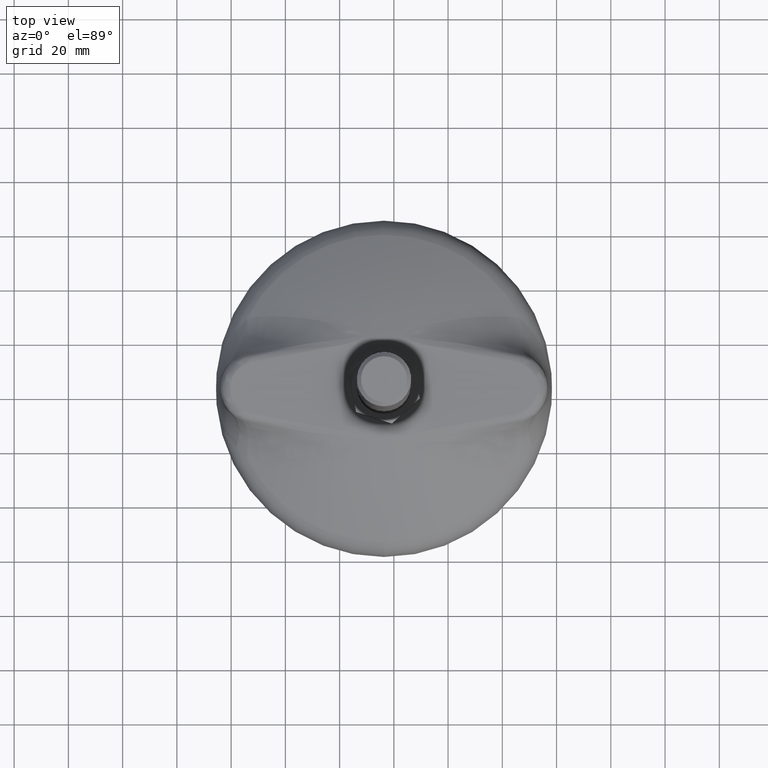
[diagram: clean part render]
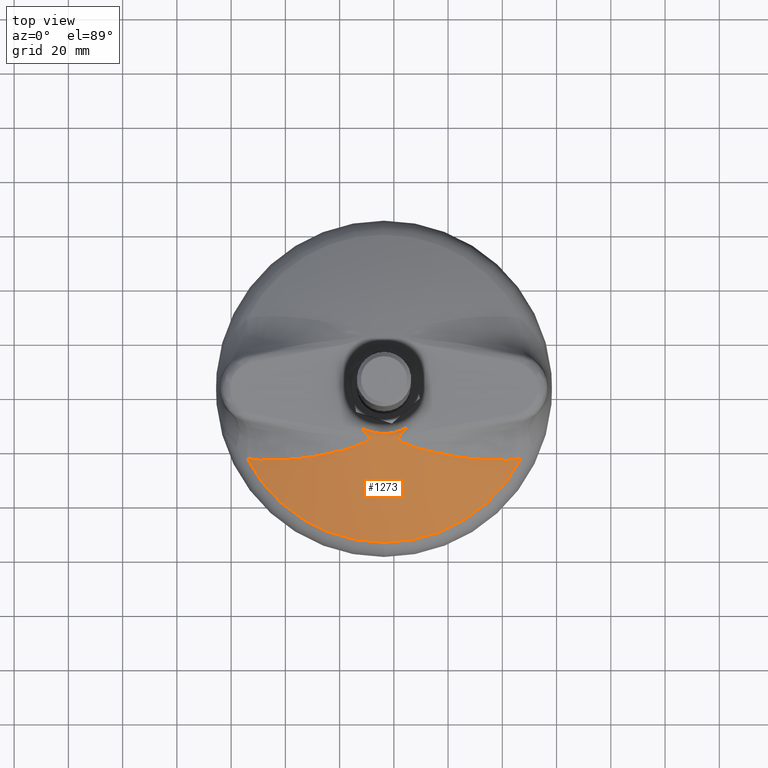
[diagram: same view with one face highlighted and labeled with its STEP entity id]
A machine part, top view. The second image highlights one B-rep face of the part: STEP entity #1273.
In plain terms, the highlighted face is a freeform B-spline surface patch.
Its self-contained STEP definition (entity closure, byte-faithful):
#19=(
BOUNDED_SURFACE()
B_SPLINE_SURFACE(2,2,((#2815,#2816,#2817,#2818,#2819),(#2820,#2821,#2822,
#2823,#2824),(#2825,#2826,#2827,#2828,#2829)),.UNSPECIFIED.,.F.,.F.,.F.)
B_SPLINE_SURFACE_WITH_KNOTS((3,3),(3,2,3),(-1.31152766641114,-1.07592567953575),
(-1.09838490266801,-2.22044604925031E-16,1.09838490266801),
 .UNSPECIFIED.)
GEOMETRIC_REPRESENTATION_ITEM()
RATIONAL_B_SPLINE_SURFACE(((1.,0.852946339407623,1.,0.852946339407623,1.),
(0.993069483144547,0.847034980425562,0.993069483144547,0.847034980425562,
0.993069483144547),(1.,0.852946339407623,1.,0.852946339407623,1.)))
REPRESENTATION_ITEM('')
SURFACE()
);
#53=B_SPLINE_CURVE_WITH_KNOTS('',3,(#2834,#2835,#2836,#2837,#2838,#2839),
 .UNSPECIFIED.,.F.,.F.,(4,2,4),(0.,0.499999999999997,0.999999999999993),
 .UNSPECIFIED.);
#54=B_SPLINE_CURVE_WITH_KNOTS('',3,(#2840,#2841,#2842,#2843,#2844,#2845,
#2846,#2847,#2848,#2849,#2850,#2851,#2852,#2853,#2854,#2855,#2856,#2857,
#2858,#2859,#2860,#2861,#2862,#2863,#2864,#2865,#2866,#2867,#2868,#2869,
#2870,#2871,#2872,#2873,#2874,#2875,#2876,#2877,#2878,#2879,#2880,#2881,
#2882,#2883,#2884,#2885,#2886,#2887,#2888,#2889,#2890,#2891,#2892,#2893,
#2894,#2895,#2896,#2897,#2898,#2899,#2900,#2901,#2902,#2903,#2904,#2905,
#2906,#2907,#2908,#2909,#2910,#2911,#2912,#2913,#2914,#2915,#2916,#2917,
#2918,#2919,#2920,#2921,#2922,#2923,#2924,#2925,#2926,#2927,#2928,#2929,
#2930,#2931,#2932,#2933,#2934,#2935,#2936,#2937,#2938,#2939,#2940,#2941,
#2942,#2943,#2944,#2945,#2946,#2947,#2948,#2949,#2950,#2951,#2952,#2953,
#2954,#2955,#2956,#2957,#2958,#2959,#2960,#2961,#2962,#2963,#2964,#2965,
#2966,#2967,#2968,#2969,#2970,#2971,#2972,#2973,#2974,#2975,#2976,#2977,
#2978,#2979,#2980,#2981,#2982,#2983,#2984,#2985,#2986,#2987,#2988,#2989,
#2990,#2991,#2992,#2993,#2994,#2995,#2996,#2997,#2998,#2999,#3000,#3001,
#3002,#3003,#3004,#3005,#3006,#3007,#3008,#3009,#3010,#3011,#3012,#3013,
#3014,#3015,#3016,#3017,#3018,#3019,#3020,#3021,#3022,#3023,#3024,#3025,
#3026,#3027,#3028,#3029,#3030,#3031,#3032,#3033,#3034,#3035,#3036,#3037,
#3038,#3039,#3040,#3041,#3042,#3043,#3044,#3045,#3046,#3047,#3048,#3049,
#3050,#3051,#3052,#3053,#3054,#3055,#3056,#3057,#3058,#3059,#3060,#3061,
#3062,#3063,#3064,#3065,#3066,#3067,#3068,#3069,#3070,#3071),
 .UNSPECIFIED.,.F.,.F.,(4,3,3,3,3,3,3,3,3,3,3,3,3,3,3,3,3,3,3,3,3,3,3,3,
3,3,3,3,3,3,3,3,3,3,3,3,3,3,3,3,3,3,3,3,3,3,3,3,3,3,3,3,3,3,3,3,3,3,3,3,
3,3,3,3,3,3,3,3,3,3,3,3,3,3,3,3,3,4),(2.02378168666351E-9,0.0865761490299942,
0.125,0.128444203547523,0.206707636889164,0.249999999999999,0.256668456542716,
0.324816380314682,0.374999999999999,0.384481258530041,0.442458853718962,
0.499999999999756,0.511582497751911,0.559525997000006,0.606296597893559,
0.624999999999998,0.637491949983096,0.675230479206423,0.687499999999998,
0.699780357652996,0.730712086133509,0.749999999999998,0.761449507702043,
0.781249999999998,0.791967878318711,0.807590319045943,0.812499999999998,
0.822366049546078,0.828124999999998,0.837546251349486,0.843749999999998,
0.849973544344471,0.851562499999998,0.852766305943557,0.85870593819465,
0.859374999999998,0.860423203722415,0.864864743951352,0.867187499999998,
0.868155326822484,0.871093749999998,0.872072936044551,0.874491568904427,
0.874999999999998,0.87604569699101,0.878427100335836,0.878906249999998,
0.880074072897452,0.882127444026438,0.882812499999998,0.884135902946793,
0.885969728793693,0.886160072160616,0.886718749999998,0.888164791082583,
0.890421781675888,0.890624999999998,0.892112446591324,0.894732954547345,
0.895978370767022,0.898437499999998,0.899776310679667,0.903596425067198,
0.906249999999998,0.907252413212478,0.912184829241365,0.914062499999998,
0.914619143098679,0.920068331109217,0.921874999999998,0.92915332971541,
0.937499999999999,0.943518941899956,0.95707996998874,0.968749999999999,
0.971926522056396,0.991490405630488,0.999999999999414),.UNSPECIFIED.);
#55=B_SPLINE_CURVE_WITH_KNOTS('',3,(#3073,#3074,#3075,#3076,#3077,#3078,
#3079,#3080,#3081,#3082,#3083,#3084,#3085,#3086,#3087,#3088,#3089,#3090,
#3091,#3092,#3093,#3094,#3095,#3096,#3097,#3098,#3099,#3100,#3101,#3102,
#3103,#3104,#3105,#3106,#3107,#3108,#3109,#3110,#3111,#3112,#3113,#3114,
#3115,#3116,#3117,#3118,#3119,#3120,#3121,#3122,#3123,#3124,#3125,#3126,
#3127,#3128,#3129,#3130,#3131,#3132,#3133,#3134,#3135,#3136,#3137,#3138,
#3139,#3140,#3141,#3142,#3143,#3144,#3145,#3146,#3147,#3148,#3149,#3150,
#3151,#3152,#3153,#3154,#3155,#3156,#3157,#3158,#3159,#3160,#3161,#3162,
#3163,#3164,#3165,#3166,#3167,#3168,#3169,#3170,#3171,#3172,#3173,#3174,
#3175,#3176,#3177,#3178,#3179,#3180,#3181,#3182,#3183,#3184,#3185,#3186,
#3187,#3188,#3189,#3190,#3191,#3192,#3193,#3194,#3195,#3196,#3197,#3198,
#3199,#3200,#3201,#3202,#3203,#3204,#3205,#3206,#3207,#3208,#3209,#3210,
#3211,#3212,#3213,#3214,#3215,#3216,#3217,#3218,#3219,#3220,#3221,#3222,
#3223,#3224,#3225,#3226,#3227,#3228,#3229,#3230,#3231,#3232,#3233,#3234,
#3235,#3236,#3237,#3238,#3239,#3240,#3241,#3242,#3243,#3244,#3245,#3246,
#3247,#3248,#3249,#3250,#3251,#3252,#3253,#3254,#3255,#3256,#3257,#3258,
#3259,#3260,#3261,#3262,#3263,#3264,#3265,#3266,#3267,#3268,#3269,#3270,
#3271,#3272,#3273,#3274,#3275,#3276,#3277,#3278,#3279,#3280,#3281,#3282,
#3283,#3284,#3285,#3286,#3287,#3288,#3289,#3290,#3291,#3292,#3293,#3294,
#3295,#3296,#3297,#3298,#3299,#3300,#3301,#3302,#3303,#3304,#3305,#3306,
#3307),.UNSPECIFIED.,.F.,.F.,(4,3,3,3,3,3,3,3,3,3,3,3,3,3,3,3,3,3,3,3,3,
3,3,3,3,3,3,3,3,3,3,3,3,3,3,3,3,3,3,3,3,3,3,3,3,3,3,3,3,3,3,3,3,3,3,3,3,
3,3,3,3,3,3,3,3,3,3,3,3,3,3,3,3,3,3,3,3,3,4),(1.31525077098876E-13,0.0195872161428969,
0.0280982337003755,0.03125,0.044827920913482,0.0565308686317433,0.062499999999999,
0.0709091388169702,0.078124999999999,0.0835716365515826,0.0854561512198449,
0.085937499999999,0.0908991749962333,0.0928293754175976,0.093749999999999,
0.0975411024682736,0.100311899837447,0.101562499999999,0.104113504605968,
0.106692213654403,0.1079824009758,0.109374999999998,0.111611829565098,0.111933859277876,
0.113281249999998,0.113940370577286,0.115774399022734,0.115966384276975,
0.117187499999998,0.119268098621012,0.120031687738481,0.121093749999998,
0.123435584628147,0.124063495126858,0.124999999999998,0.12743124757354,
0.128039827030911,0.128906249999998,0.131960931640683,0.132812499999998,
0.137210998788567,0.139699868358434,0.140624999999998,0.14653755844062,
0.147363520850277,0.148437499999998,0.154570500648442,0.156249999999998,
0.16259725774528,0.171874999999998,0.177795055789979,0.187499999999998,
0.202947438394465,0.208241506089502,0.218749999999998,0.238819274244342,
0.249999999999998,0.269546942568657,0.281249999999998,0.300436061959983,
0.312499999999998,0.349956041305379,0.362655454343991,0.374999999999999,
0.421510585194155,0.469171255437929,0.488460418754118,0.500000000000055,
0.557783562789379,0.615495794665734,0.624999999999999,0.692978968771317,
0.743279747588523,0.749999999999999,0.828230123524055,0.871511586258377,
0.875,0.961888859007505,0.999999994585633),.UNSPECIFIED.);
#56=B_SPLINE_CURVE_WITH_KNOTS('',3,(#3309,#3310,#3311,#3312,#3313,#3314,
#3315,#3316,#3317,#3318,#3319,#3320,#3321),.UNSPECIFIED.,.F.,.F.,(4,3,3,
3,4),(0.,0.383986021444719,0.5,0.501618797268427,1.),.UNSPECIFIED.);
#254=FACE_OUTER_BOUND('',#337,.T.);
#337=EDGE_LOOP('',(#1002,#1003,#1004,#1005,#1006,#1007,#1008,#1009));
#471=CIRCLE('',#1462,16.9392939245695);
#477=CIRCLE('',#1468,16.9392939245695);
#490=CIRCLE('',#1484,56.7491782872209);
#491=CIRCLE('',#1485,56.7491782872209);
#588=VERTEX_POINT('',#2776);
#589=VERTEX_POINT('',#2777);
#592=VERTEX_POINT('',#2785);
#603=VERTEX_POINT('',#2830);
#604=VERTEX_POINT('',#2831);
#605=VERTEX_POINT('',#2833);
#606=VERTEX_POINT('',#3072);
#607=VERTEX_POINT('',#3308);
#731=EDGE_CURVE('',#588,#589,#471,.T.);
#737=EDGE_CURVE('',#589,#592,#477,.T.);
#752=EDGE_CURVE('',#603,#604,#490,.T.);
#753=EDGE_CURVE('',#603,#605,#53,.T.);
#754=EDGE_CURVE('',#605,#588,#54,.T.);
#755=EDGE_CURVE('',#592,#606,#55,.T.);
#756=EDGE_CURVE('',#606,#607,#56,.T.);
#757=EDGE_CURVE('',#604,#607,#491,.T.);
#1002=ORIENTED_EDGE('',*,*,#752,.F.);
#1003=ORIENTED_EDGE('',*,*,#753,.T.);
#1004=ORIENTED_EDGE('',*,*,#754,.T.);
#1005=ORIENTED_EDGE('',*,*,#731,.T.);
#1006=ORIENTED_EDGE('',*,*,#737,.T.);
#1007=ORIENTED_EDGE('',*,*,#755,.T.);
#1008=ORIENTED_EDGE('',*,*,#756,.T.);
#1009=ORIENTED_EDGE('',*,*,#757,.F.);
#1273=ADVANCED_FACE('',(#254),#19,.F.);
#1462=AXIS2_PLACEMENT_3D('',#2778,#1701,#1702);
#1468=AXIS2_PLACEMENT_3D('',#2787,#1713,#1714);
#1484=AXIS2_PLACEMENT_3D('',#2832,#1747,#1748);
#1485=AXIS2_PLACEMENT_3D('',#3322,#1749,#1750);
#1701=DIRECTION('center_axis',(0.,-1.171453E-15,-1.));
#1702=DIRECTION('ref_axis',(0.,1.,-1.171453E-15));
#1713=DIRECTION('center_axis',(0.,-1.171453E-15,-1.));
#1714=DIRECTION('ref_axis',(0.,1.,-1.171453E-15));
#1747=DIRECTION('center_axis',(0.,-1.171453E-15,-1.));
#1748=DIRECTION('ref_axis',(0.,1.,-1.171453E-15));
#1749=DIRECTION('center_axis',(0.,-1.171453E-15,-1.));
#1750=DIRECTION('ref_axis',(0.,1.,-1.171453E-15));
#2776=CARTESIAN_POINT('',(8.89716566280355,-14.4145801822872,24.5657738747235));
#2777=CARTESIAN_POINT('',(-2.07446520845402E-15,-16.9392939245695,24.5657738747235));
#2778=CARTESIAN_POINT('Origin',(0.,1.403457E-14,24.5657738747235));
#2785=CARTESIAN_POINT('',(-8.89716575086442,-14.414580127933,24.5657738747235));
#2787=CARTESIAN_POINT('Origin',(0.,1.403457E-14,24.5657738747235));
#2815=CARTESIAN_POINT('Ctrl Pts',(15.0839939767434,-7.70797018497906,24.5657738747233));
#2816=CARTESIAN_POINT('Ctrl Pts',(10.3667573972032,-16.93929392457,24.5657738747233));
#2817=CARTESIAN_POINT('Ctrl Pts',(-9.19826499042815E-13,-16.9392939245695,
24.5657738747233));
#2818=CARTESIAN_POINT('Ctrl Pts',(-10.3667573972051,-16.9392939245689,24.5657738747233));
#2819=CARTESIAN_POINT('Ctrl Pts',(-15.0839939767442,-7.70797018497743,24.5657738747233));
#2820=CARTESIAN_POINT('Ctrl Pts',(33.6395538885165,-17.1899219005564,19.0387703333837));
#2821=CARTESIAN_POINT('Ctrl Pts',(23.1194135087879,-37.7771491879116,19.0387703333838));
#2822=CARTESIAN_POINT('Ctrl Pts',(-2.05135013513953E-12,-37.7771491879103,
19.0387703333838));
#2823=CARTESIAN_POINT('Ctrl Pts',(-23.119413508792,-37.7771491879091,19.0387703333838));
#2824=CARTESIAN_POINT('Ctrl Pts',(-33.6395538885183,-17.1899219005528,19.0387703333837));
#2825=CARTESIAN_POINT('Ctrl Pts',(50.533644866271,-25.8228575646536,8.80030892666644));
#2826=CARTESIAN_POINT('Ctrl Pts',(34.7301939746704,-56.7491782872228,8.80030892666648));
#2827=CARTESIAN_POINT('Ctrl Pts',(-3.08155689487026E-12,-56.7491782872209,
8.80030892666648));
#2828=CARTESIAN_POINT('Ctrl Pts',(-34.7301939746765,-56.749178287219,8.80030892666648));
#2829=CARTESIAN_POINT('Ctrl Pts',(-50.5336448662737,-25.8228575646481,8.80030892666644));
#2830=CARTESIAN_POINT('',(50.5336448544281,-25.8228575586019,8.8003089338437));
#2831=CARTESIAN_POINT('',(-6.94976995436875E-15,-56.7491782872209,8.80030892666654));
#2832=CARTESIAN_POINT('Origin',(0.,-2.290244E-14,8.80030892666647));
#2833=CARTESIAN_POINT('',(45.7480643016466,-26.4967497702618,10.8352331217072));
#2834=CARTESIAN_POINT('Ctrl Pts',(50.5336448550324,-25.8228575866468,8.8003089266665));
#2835=CARTESIAN_POINT('Ctrl Pts',(49.7446296233757,-26.0257329526689,9.12965415331297));
#2836=CARTESIAN_POINT('Ctrl Pts',(48.9511964342293,-26.1832588692898,9.46362763514819));
#2837=CARTESIAN_POINT('Ctrl Pts',(47.3559105992362,-26.4081910737073,10.1416186712736));
#2838=CARTESIAN_POINT('Ctrl Pts',(46.554057550558,-26.4756007567011,10.4856341538502));
#2839=CARTESIAN_POINT('Ctrl Pts',(45.7480643943055,-26.4967497666471,10.8352330818183));
#2840=CARTESIAN_POINT('Ctrl Pts',(45.7480643017306,-26.4967497690762,10.8352331219726));
#2841=CARTESIAN_POINT('Ctrl Pts',(44.4279651203284,-26.5313887668009,11.4078251509695));
#2842=CARTESIAN_POINT('Ctrl Pts',(43.1064201817291,-26.5414593681943,11.9657170028149));
#2843=CARTESIAN_POINT('Ctrl Pts',(41.7834310889078,-26.527341996991,12.5090759252897));
#2844=CARTESIAN_POINT('Ctrl Pts',(41.1962677939893,-26.521076486386,12.7502271312783));
#2845=CARTESIAN_POINT('Ctrl Pts',(40.6088200273131,-26.5100460199142,12.9885153954248));
#2846=CARTESIAN_POINT('Ctrl Pts',(40.0210879037567,-26.4942810527871,13.2239536361297));
#2847=CARTESIAN_POINT('Ctrl Pts',(39.9684052856994,-26.4928679264519,13.2450576432344));
#2848=CARTESIAN_POINT('Ctrl Pts',(39.9157204164937,-26.4914167463987,13.2661387400811));
#2849=CARTESIAN_POINT('Ctrl Pts',(39.863033287629,-26.4899275342731,13.2871969389641));
#2850=CARTESIAN_POINT('Ctrl Pts',(38.6658114797522,-26.4560878229108,13.7657072598078));
#2851=CARTESIAN_POINT('Ctrl Pts',(37.4674096088871,-26.40261750882,14.2324002925068));
#2852=CARTESIAN_POINT('Ctrl Pts',(36.267832728456,-26.3295125570575,14.6872896464699));
#2853=CARTESIAN_POINT('Ctrl Pts',(35.6042722932744,-26.289073670316,14.938917184979));
#2854=CARTESIAN_POINT('Ctrl Pts',(34.9403523342746,-26.2426260220137,15.1869324674276));
#2855=CARTESIAN_POINT('Ctrl Pts',(34.2760739729111,-26.1901630532542,15.4313342778748));
#2856=CARTESIAN_POINT('Ctrl Pts',(34.1737531230725,-26.1820820199695,15.4689802443876));
#2857=CARTESIAN_POINT('Ctrl Pts',(34.0714239640404,-26.1738581751416,15.5065404268996));
#2858=CARTESIAN_POINT('Ctrl Pts',(33.9690863789683,-26.1654914839329,15.5440148592516));
#2859=CARTESIAN_POINT('Ctrl Pts',(32.9232530737911,-26.0799885446757,15.92698275339));
#2860=CARTESIAN_POINT('Ctrl Pts',(31.876530385699,-25.9795758240757,16.3009994876264));
#2861=CARTESIAN_POINT('Ctrl Pts',(30.8289291477938,-25.8640068156989,16.6659942137128));
#2862=CARTESIAN_POINT('Ctrl Pts',(30.0574834573746,-25.7789026651572,16.9347735910913));
#2863=CARTESIAN_POINT('Ctrl Pts',(29.2855614006283,-25.6855787585471,17.198660051332));
#2864=CARTESIAN_POINT('Ctrl Pts',(28.5131691969505,-25.5839211287636,17.4576161880418));
#2865=CARTESIAN_POINT('Ctrl Pts',(28.3672401026448,-25.5647148165132,17.5065411180386));
#2866=CARTESIAN_POINT('Ctrl Pts',(28.2212950056459,-25.5452107066141,17.5552898831693));
#2867=CARTESIAN_POINT('Ctrl Pts',(28.0753333400175,-25.5254079428175,17.6038623974776));
#2868=CARTESIAN_POINT('Ctrl Pts',(27.1827823842462,-25.4043146702964,17.9008817818722));
#2869=CARTESIAN_POINT('Ctrl Pts',(26.2896001385164,-25.2720663858376,18.1913147804613));
#2870=CARTESIAN_POINT('Ctrl Pts',(25.3958039705711,-25.128287190001,18.4750563534144));
#2871=CARTESIAN_POINT('Ctrl Pts',(24.5087362010756,-24.9855903480087,18.7566619512671));
#2872=CARTESIAN_POINT('Ctrl Pts',(23.6210635118824,-24.8315356493307,19.0316765532732));
#2873=CARTESIAN_POINT('Ctrl Pts',(22.7328124633809,-24.6657121182508,19.2999731178337));
#2874=CARTESIAN_POINT('Ctrl Pts',(22.5540157859144,-24.6323333832041,19.3539787217674));
#2875=CARTESIAN_POINT('Ctrl Pts',(22.3751977311755,-24.5984763661432,19.4077118901628));
#2876=CARTESIAN_POINT('Ctrl Pts',(22.1963566252577,-24.5641374874498,19.4611719654094));
#2877=CARTESIAN_POINT('Ctrl Pts',(21.4560786117778,-24.4219983703055,19.6824595609035));
#2878=CARTESIAN_POINT('Ctrl Pts',(20.7153910336967,-24.2716408138851,19.8990651647829));
#2879=CARTESIAN_POINT('Ctrl Pts',(19.9743229300607,-24.1126008450627,20.1108911727483));
#2880=CARTESIAN_POINT('Ctrl Pts',(19.2513844492723,-23.9574516585291,20.317535031307));
#2881=CARTESIAN_POINT('Ctrl Pts',(18.5280836412353,-23.7940397251519,20.5196302935032));
#2882=CARTESIAN_POINT('Ctrl Pts',(17.804460824562,-23.6218904339288,20.7170674622711));
#2883=CARTESIAN_POINT('Ctrl Pts',(17.5150865540788,-23.5530485256665,20.796021905611));
#2884=CARTESIAN_POINT('Ctrl Pts',(17.2256609567411,-23.4828088594721,20.8742312240937));
#2885=CARTESIAN_POINT('Ctrl Pts',(16.9361873363556,-23.4111390190766,20.9516875374694));
#2886=CARTESIAN_POINT('Ctrl Pts',(16.7428487144993,-23.3632709330234,21.0034203926503));
#2887=CARTESIAN_POINT('Ctrl Pts',(16.5494894757173,-23.3147600399923,21.0548185009264));
#2888=CARTESIAN_POINT('Ctrl Pts',(16.3561080332683,-23.2655972241594,21.105879675096));
#2889=CARTESIAN_POINT('Ctrl Pts',(15.7718973033995,-23.1170749866765,21.2601369060475));
#2890=CARTESIAN_POINT('Ctrl Pts',(15.1874986145333,-22.962599358544,21.4113112968625));
#2891=CARTESIAN_POINT('Ctrl Pts',(14.6029708541303,-22.8016275093229,21.5593638481027));
#2892=CARTESIAN_POINT('Ctrl Pts',(14.412929650663,-22.7492924689319,21.6074985765452));
#2893=CARTESIAN_POINT('Ctrl Pts',(14.2228749222326,-22.6962703799644,21.6553032511892));
#2894=CARTESIAN_POINT('Ctrl Pts',(14.0328090545757,-22.6425414569653,21.7027763358126));
#2895=CARTESIAN_POINT('Ctrl Pts',(13.842575314259,-22.5887650787481,21.7502913502842));
#2896=CARTESIAN_POINT('Ctrl Pts',(13.6523560808114,-22.534283654124,21.7974689756191));
#2897=CARTESIAN_POINT('Ctrl Pts',(13.4621377299135,-22.4790728899198,21.8443116816672));
#2898=CARTESIAN_POINT('Ctrl Pts',(12.9830163111211,-22.3400081805832,21.9622989509077));
#2899=CARTESIAN_POINT('Ctrl Pts',(12.5039045476354,-22.1963036007142,22.0781644476264));
#2900=CARTESIAN_POINT('Ctrl Pts',(12.0246478203319,-22.0472634652793,22.1919976888736));
#2901=CARTESIAN_POINT('Ctrl Pts',(11.7258005547487,-21.9543273949033,22.2629800057429));
#2902=CARTESIAN_POINT('Ctrl Pts',(11.4267916382237,-21.859289584363,22.333191354444));
#2903=CARTESIAN_POINT('Ctrl Pts',(11.1280586314954,-21.7620016298806,22.4025807366549));
#2904=CARTESIAN_POINT('Ctrl Pts',(10.9507275896281,-21.7042504810589,22.4437710007531));
#2905=CARTESIAN_POINT('Ctrl Pts',(10.773349845834,-21.645648905539,22.4847077189969));
#2906=CARTESIAN_POINT('Ctrl Pts',(10.5961419226889,-21.5862108630401,22.5253482748174));
#2907=CARTESIAN_POINT('Ctrl Pts',(10.2896829719042,-21.4834201987311,22.5956310357405));
#2908=CARTESIAN_POINT('Ctrl Pts',(9.98358871706936,-21.3781272561396,22.6650493391211));
#2909=CARTESIAN_POINT('Ctrl Pts',(9.67862242781862,-21.2699242580887,22.733595554478));
#2910=CARTESIAN_POINT('Ctrl Pts',(9.51354614939516,-21.2113546756067,22.7706991771733));
#2911=CARTESIAN_POINT('Ctrl Pts',(9.34875770209239,-21.151872119996,22.8075699078821));
#2912=CARTESIAN_POINT('Ctrl Pts',(9.18430302850618,-21.0914159361188,22.8442159600671));
#2913=CARTESIAN_POINT('Ctrl Pts',(8.94459295585765,-21.0032946567825,22.8976314552914));
#2914=CARTESIAN_POINT('Ctrl Pts',(8.70555861139395,-20.9132197729035,22.9505402132856));
#2915=CARTESIAN_POINT('Ctrl Pts',(8.46753363179675,-20.8203426044673,23.0031365347907));
#2916=CARTESIAN_POINT('Ctrl Pts',(8.39272926996098,-20.7911539986086,23.0196660363235));
#2917=CARTESIAN_POINT('Ctrl Pts',(8.31802468159885,-20.7616882564101,23.0361647802733));
#2918=CARTESIAN_POINT('Ctrl Pts',(8.24343044227474,-20.7319180375402,23.0526390754951));
#2919=CARTESIAN_POINT('Ctrl Pts',(8.09353262449171,-20.6720945058042,23.0857443249841));
#2920=CARTESIAN_POINT('Ctrl Pts',(7.94409111777968,-20.6110150932224,23.1187568917726));
#2921=CARTESIAN_POINT('Ctrl Pts',(7.79523330283061,-20.548442958752,23.1517282793066));
#2922=CARTESIAN_POINT('Ctrl Pts',(7.70834292416723,-20.5119187328672,23.1709741371667));
#2923=CARTESIAN_POINT('Ctrl Pts',(7.6216535342721,-20.474878776148,23.1902078195247));
#2924=CARTESIAN_POINT('Ctrl Pts',(7.53521681281211,-20.4371860835255,23.2094625932844));
#2925=CARTESIAN_POINT('Ctrl Pts',(7.39381221396789,-20.3755234013965,23.2409620938826));
#2926=CARTESIAN_POINT('Ctrl Pts',(7.2530426672772,-20.3121402118796,23.2725147293665));
#2927=CARTESIAN_POINT('Ctrl Pts',(7.11322985492279,-20.2464631009224,23.3042501696088));
#2928=CARTESIAN_POINT('Ctrl Pts',(7.02116527519845,-20.2032157367076,23.3251474673533));
#2929=CARTESIAN_POINT('Ctrl Pts',(6.92953832385097,-20.1590510370698,23.3460996879918));
#2930=CARTESIAN_POINT('Ctrl Pts',(6.83861189796251,-20.1135643303527,23.3671977928444));
#2931=CARTESIAN_POINT('Ctrl Pts',(6.74739533270812,-20.0679324789858,23.3883632201581));
#2932=CARTESIAN_POINT('Ctrl Pts',(6.65686806673273,-20.0210642021445,23.409650955659));
#2933=CARTESIAN_POINT('Ctrl Pts',(6.56731494941288,-19.9724719910319,23.4311733377664));
#2934=CARTESIAN_POINT('Ctrl Pts',(6.54445081856406,-19.9600657375551,23.4366682951214));
#2935=CARTESIAN_POINT('Ctrl Pts',(6.52165012399788,-19.9475473573213,23.4421784887309));
#2936=CARTESIAN_POINT('Ctrl Pts',(6.49891747568834,-19.9349092593928,23.4477056626921));
#2937=CARTESIAN_POINT('Ctrl Pts',(6.4816950333548,-19.9253345318988,23.4518930953889));
#2938=CARTESIAN_POINT('Ctrl Pts',(6.4645112554201,-19.9156905282934,23.4560904642828));
#2939=CARTESIAN_POINT('Ctrl Pts',(6.44736876429857,-19.9059754369311,23.4602980628248));
#2940=CARTESIAN_POINT('Ctrl Pts',(6.36278694803967,-19.858040742567,23.4810585418152));
#2941=CARTESIAN_POINT('Ctrl Pts',(6.2790807973816,-19.808233263318,23.5021182444055));
#2942=CARTESIAN_POINT('Ctrl Pts',(6.19731477419886,-19.7560918182899,23.5235200282579));
#2943=CARTESIAN_POINT('Ctrl Pts',(6.18810435160464,-19.750218416054,23.5259308031235));
#2944=CARTESIAN_POINT('Ctrl Pts',(6.17891849920727,-19.744315428928,23.5283459159951));
#2945=CARTESIAN_POINT('Ctrl Pts',(6.16975869860227,-19.7383822225053,23.5307654259598));
#2946=CARTESIAN_POINT('Ctrl Pts',(6.15540824993818,-19.7290868046404,23.5345560165019));
#2947=CARTESIAN_POINT('Ctrl Pts',(6.14112110589823,-19.7197136740635,23.5383584281456));
#2948=CARTESIAN_POINT('Ctrl Pts',(6.12690319388021,-19.710261257918,23.5421726294749));
#2949=CARTESIAN_POINT('Ctrl Pts',(6.06665781709991,-19.6702086558586,23.5583344959928));
#2950=CARTESIAN_POINT('Ctrl Pts',(6.00757719217457,-19.6287606014749,23.5747072301536));
#2951=CARTESIAN_POINT('Ctrl Pts',(5.9502082653709,-19.5852848261712,23.5914248794769));
#2952=CARTESIAN_POINT('Ctrl Pts',(5.92020650587554,-19.5625486547417,23.6001675721203));
#2953=CARTESIAN_POINT('Ctrl Pts',(5.89067236663156,-19.5392583824081,23.6090045220878));
#2954=CARTESIAN_POINT('Ctrl Pts',(5.86167978986381,-19.5153276640272,23.617954196779));
#2955=CARTESIAN_POINT('Ctrl Pts',(5.84959940222897,-19.5053564097734,23.6216832733748));
#2956=CARTESIAN_POINT('Ctrl Pts',(5.83761557642757,-19.4952698315003,23.6254328452459));
#2957=CARTESIAN_POINT('Ctrl Pts',(5.8257337849833,-19.4850636021098,23.6292037160756));
#2958=CARTESIAN_POINT('Ctrl Pts',(5.78965942688632,-19.4540764251691,23.6406524732169));
#2959=CARTESIAN_POINT('Ctrl Pts',(5.7545417975134,-19.4219623120612,23.65230290864));
#2960=CARTESIAN_POINT('Ctrl Pts',(5.72067944151621,-19.388366689435,23.6642300197373));
#2961=CARTESIAN_POINT('Ctrl Pts',(5.70939531243573,-19.3771714453035,23.668204553027));
#2962=CARTESIAN_POINT('Ctrl Pts',(5.69824957812552,-19.3658078660686,23.6722109369868));
#2963=CARTESIAN_POINT('Ctrl Pts',(5.68725426992444,-19.3542638716972,23.6762515850985));
#2964=CARTESIAN_POINT('Ctrl Pts',(5.66009537211586,-19.3257496947679,23.6862321647367));
#2965=CARTESIAN_POINT('Ctrl Pts',(5.63378556876137,-19.2960043877294,23.6964625340178));
#2966=CARTESIAN_POINT('Ctrl Pts',(5.60898514968778,-19.2652515872567,23.7068309328298));
#2967=CARTESIAN_POINT('Ctrl Pts',(5.60377174816273,-19.258786910333,23.7090105180223));
#2968=CARTESIAN_POINT('Ctrl Pts',(5.59862486537986,-19.2522777273753,23.7111962134019));
#2969=CARTESIAN_POINT('Ctrl Pts',(5.59355032831943,-19.2457261355893,23.7133870003732));
#2970=CARTESIAN_POINT('Ctrl Pts',(5.58311346050963,-19.2322513896963,23.7178928210514));
#2971=CARTESIAN_POINT('Ctrl Pts',(5.57296857639721,-19.218576242702,23.7224270274222));
#2972=CARTESIAN_POINT('Ctrl Pts',(5.56316738688294,-19.204718934108,23.7269806554162));
#2973=CARTESIAN_POINT('Ctrl Pts',(5.54084678570195,-19.1731611871511,23.7373507961254));
#2974=CARTESIAN_POINT('Ctrl Pts',(5.52018424779078,-19.1405546840485,23.7478604205436));
#2975=CARTESIAN_POINT('Ctrl Pts',(5.50156033331867,-19.1066981211786,23.7585357097725));
#2976=CARTESIAN_POINT('Ctrl Pts',(5.49781311326706,-19.0998860199174,23.7606836286708));
#2977=CARTESIAN_POINT('Ctrl Pts',(5.4941482770177,-19.0930233930498,23.7628382441611));
#2978=CARTESIAN_POINT('Ctrl Pts',(5.49056869102214,-19.0861087308249,23.7649997531334));
#2979=CARTESIAN_POINT('Ctrl Pts',(5.4818442301664,-19.0692557483885,23.7702679602505));
#2980=CARTESIAN_POINT('Ctrl Pts',(5.47362740211429,-19.0520874454516,23.7755787147533));
#2981=CARTESIAN_POINT('Ctrl Pts',(5.46595004252238,-19.0345570003609,23.7809423974614));
#2982=CARTESIAN_POINT('Ctrl Pts',(5.4524510191968,-19.0037333969651,23.7903733062421));
#2983=CARTESIAN_POINT('Ctrl Pts',(5.44094422307266,-18.972453688387,23.7997623589994));
#2984=CARTESIAN_POINT('Ctrl Pts',(5.43145974139441,-18.9406132155788,23.8091358596887));
#2985=CARTESIAN_POINT('Ctrl Pts',(5.42829548105292,-18.9299904373629,23.812263093996));
#2986=CARTESIAN_POINT('Ctrl Pts',(5.42535672350305,-18.9193051255621,23.8153885952041));
#2987=CARTESIAN_POINT('Ctrl Pts',(5.42264584249725,-18.9085530370344,23.8185133326328));
#2988=CARTESIAN_POINT('Ctrl Pts',(5.41740891580812,-18.8877819669453,23.8245497542986));
#2989=CARTESIAN_POINT('Ctrl Pts',(5.41303159949777,-18.8668013292835,23.8305718721286));
#2990=CARTESIAN_POINT('Ctrl Pts',(5.40952790984923,-18.8455734915668,23.8365888325809));
#2991=CARTESIAN_POINT('Ctrl Pts',(5.40467288315266,-18.8161582952558,23.8449264727712));
#2992=CARTESIAN_POINT('Ctrl Pts',(5.40150268631094,-18.7861345936497,23.8532894544866));
#2993=CARTESIAN_POINT('Ctrl Pts',(5.40002234922456,-18.7562430134512,23.8614764912596));
#2994=CARTESIAN_POINT('Ctrl Pts',(5.39986869649593,-18.7531403938501,23.8623262710504));
#2995=CARTESIAN_POINT('Ctrl Pts',(5.39973328752108,-18.7500392243277,23.8631741449181));
#2996=CARTESIAN_POINT('Ctrl Pts',(5.39961615427976,-18.7469403561416,23.864019879343));
#2997=CARTESIAN_POINT('Ctrl Pts',(5.39927235587356,-18.7378448514715,23.8665021989996));
#2998=CARTESIAN_POINT('Ctrl Pts',(5.39908148401107,-18.7287523415798,23.8689709995501));
#2999=CARTESIAN_POINT('Ctrl Pts',(5.39903951101454,-18.7196597851676,23.8714273865509));
#3000=CARTESIAN_POINT('Ctrl Pts',(5.39893087116333,-18.6961252735208,23.8777853199923));
#3001=CARTESIAN_POINT('Ctrl Pts',(5.39982027169439,-18.6725975712639,23.8840581282873));
#3002=CARTESIAN_POINT('Ctrl Pts',(5.40163513746886,-18.6490778929806,23.8902506269812));
#3003=CARTESIAN_POINT('Ctrl Pts',(5.40446779210809,-18.6123682218086,23.8999159203602));
#3004=CARTESIAN_POINT('Ctrl Pts',(5.40960229011284,-18.5755864020681,23.9094061673066));
#3005=CARTESIAN_POINT('Ctrl Pts',(5.41661304764411,-18.5392015004924,23.9186265690065));
#3006=CARTESIAN_POINT('Ctrl Pts',(5.41724429280768,-18.5359254218312,23.9194567694453));
#3007=CARTESIAN_POINT('Ctrl Pts',(5.41789071911515,-18.5326525783087,23.9202847799129));
#3008=CARTESIAN_POINT('Ctrl Pts',(5.41855199852015,-18.529383322241,23.9211105299055));
#3009=CARTESIAN_POINT('Ctrl Pts',(5.42339220080598,-18.5054541622339,23.9271545666193));
#3010=CARTESIAN_POINT('Ctrl Pts',(5.42903361275729,-18.4816879944586,23.9330849120172));
#3011=CARTESIAN_POINT('Ctrl Pts',(5.43534845842096,-18.4582251879254,23.9388732000639));
#3012=CARTESIAN_POINT('Ctrl Pts',(5.4464736331998,-18.416889605492,23.9490707123421));
#3013=CARTESIAN_POINT('Ctrl Pts',(5.45969820445558,-18.3761857984412,23.9589101597139));
#3014=CARTESIAN_POINT('Ctrl Pts',(5.47462988864047,-18.3359715073623,23.9684574544441));
#3015=CARTESIAN_POINT('Ctrl Pts',(5.48172628444733,-18.316859361468,23.9729948784514));
#3016=CARTESIAN_POINT('Ctrl Pts',(5.48920755954434,-18.2978574648761,23.9774664540554));
#3017=CARTESIAN_POINT('Ctrl Pts',(5.497027943738,-18.2789488985616,23.9818799840677));
#3018=CARTESIAN_POINT('Ctrl Pts',(5.51246963710917,-18.241613100743,23.9905946936584));
#3019=CARTESIAN_POINT('Ctrl Pts',(5.52929455361631,-18.2045596568834,23.9990996206988));
#3020=CARTESIAN_POINT('Ctrl Pts',(5.54714787744116,-18.1679723444534,24.0073723378817));
#3021=CARTESIAN_POINT('Ctrl Pts',(5.55686766779776,-18.1480533080868,24.0118762094008));
#3022=CARTESIAN_POINT('Ctrl Pts',(5.56688448037052,-18.1282911884704,24.0163069038129));
#3023=CARTESIAN_POINT('Ctrl Pts',(5.57713708981651,-18.1087123878493,24.0206620270521));
#3024=CARTESIAN_POINT('Ctrl Pts',(5.6063915179811,-18.0528469401956,24.0330887795407));
#3025=CARTESIAN_POINT('Ctrl Pts',(5.63755524616069,-17.9982989783949,24.0449482579362));
#3026=CARTESIAN_POINT('Ctrl Pts',(5.6701857929733,-17.9447203186013,24.0563648467367));
#3027=CARTESIAN_POINT('Ctrl Pts',(5.69285202552071,-17.9075028496623,24.0642951783409));
#3028=CARTESIAN_POINT('Ctrl Pts',(5.71622521777927,-17.8707522603907,24.0720120953376));
#3029=CARTESIAN_POINT('Ctrl Pts',(5.74014697731991,-17.8343417473235,24.0795608319068));
#3030=CARTESIAN_POINT('Ctrl Pts',(5.74918364989806,-17.8205873291156,24.0824124390655));
#3031=CARTESIAN_POINT('Ctrl Pts',(5.75829936235631,-17.8068850093284,24.0852390443595));
#3032=CARTESIAN_POINT('Ctrl Pts',(5.76748549410242,-17.793228075395,24.0880430648325));
#3033=CARTESIAN_POINT('Ctrl Pts',(5.8126862385697,-17.7260285622601,24.1018403645431));
#3034=CARTESIAN_POINT('Ctrl Pts',(5.85965895267472,-17.6599873404915,24.1150696081585));
#3035=CARTESIAN_POINT('Ctrl Pts',(5.90793482105187,-17.5947937399665,24.1278454896681));
#3036=CARTESIAN_POINT('Ctrl Pts',(5.92631246516553,-17.5699758582958,24.132709008679));
#3037=CARTESIAN_POINT('Ctrl Pts',(5.94487857807252,-17.5452804262195,24.1375069685267));
#3038=CARTESIAN_POINT('Ctrl Pts',(5.96360598060634,-17.5206889761458,24.1422461852452));
#3039=CARTESIAN_POINT('Ctrl Pts',(5.96915779491071,-17.513398741206,24.1436511452295));
#3040=CARTESIAN_POINT('Ctrl Pts',(5.97472416196047,-17.5061182464865,24.145050752681));
#3041=CARTESIAN_POINT('Ctrl Pts',(5.98030438395307,-17.4988469278085,24.1464452061204));
#3042=CARTESIAN_POINT('Ctrl Pts',(6.03493126938514,-17.4276652628338,24.1600960336995));
#3043=CARTESIAN_POINT('Ctrl Pts',(6.09088127608909,-17.3573251347709,24.1732625719983));
#3044=CARTESIAN_POINT('Ctrl Pts',(6.14783088446845,-17.2876250551268,24.1860198920999));
#3045=CARTESIAN_POINT('Ctrl Pts',(6.1667124289485,-17.2645161138801,24.1902495595867));
#3046=CARTESIAN_POINT('Ctrl Pts',(6.18570358861395,-17.2414772114133,24.1944343547067));
#3047=CARTESIAN_POINT('Ctrl Pts',(6.20479178910906,-17.2185000815278,24.1985773366347));
#3048=CARTESIAN_POINT('Ctrl Pts',(6.28169033847039,-17.1259346269089,24.2152677156142));
#3049=CARTESIAN_POINT('Ctrl Pts',(6.36023792053561,-17.0344484085134,24.2312527448324));
#3050=CARTESIAN_POINT('Ctrl Pts',(6.43973376313812,-16.9436830386143,24.2466751218895));
#3051=CARTESIAN_POINT('Ctrl Pts',(6.53089830406208,-16.8395947868548,24.2643612533693));
#3052=CARTESIAN_POINT('Ctrl Pts',(6.62332047837499,-16.736593761098,24.2812727519449));
#3053=CARTESIAN_POINT('Ctrl Pts',(6.71660766952449,-16.6344771027803,24.2974880463243));
#3054=CARTESIAN_POINT('Ctrl Pts',(6.78387882848901,-16.5608388479463,24.30918120197));
#3055=CARTESIAN_POINT('Ctrl Pts',(6.85161826094194,-16.4876363057394,24.320516673129));
#3056=CARTESIAN_POINT('Ctrl Pts',(6.9197075441634,-16.4147434575682,24.3315338704244));
#3057=CARTESIAN_POINT('Ctrl Pts',(7.0731166811278,-16.2505116078592,24.3563562602175));
#3058=CARTESIAN_POINT('Ctrl Pts',(7.22826900931764,-16.0878174641644,24.379574260485));
#3059=CARTESIAN_POINT('Ctrl Pts',(7.38469092798597,-15.9262257471703,24.4013079162575));
#3060=CARTESIAN_POINT('Ctrl Pts',(7.51930081695066,-15.7871669549794,24.4200109536274));
#3061=CARTESIAN_POINT('Ctrl Pts',(7.65485030607785,-15.6489237199753,24.4376150699708));
#3062=CARTESIAN_POINT('Ctrl Pts',(7.79102027826486,-15.5111951099546,24.4542065323388));
#3063=CARTESIAN_POINT('Ctrl Pts',(7.82808504327864,-15.473706091751,24.4587226429323));
#3064=CARTESIAN_POINT('Ctrl Pts',(7.86519802772832,-15.4362566219728,24.4631631277472));
#3065=CARTESIAN_POINT('Ctrl Pts',(7.90235333157499,-15.3988405003839,24.4675297094152));
#3066=CARTESIAN_POINT('Ctrl Pts',(8.13118915443744,-15.168398326974,24.4944230518359));
#3067=CARTESIAN_POINT('Ctrl Pts',(8.36176302550754,-14.9393782331813,24.5184608362667));
#3068=CARTESIAN_POINT('Ctrl Pts',(8.59372429001953,-14.7114377570105,24.5396798777165));
#3069=CARTESIAN_POINT('Ctrl Pts',(8.69461919990921,-14.6122917472151,24.5489094069636));
#3070=CARTESIAN_POINT('Ctrl Pts',(8.79577633207203,-14.5133494322036,24.5576059453183));
#3071=CARTESIAN_POINT('Ctrl Pts',(8.89716566280634,-14.4145801822917,24.5657738747221));
#3072=CARTESIAN_POINT('',(-45.7480638880828,-26.4967497830188,10.8352333006041));
#3073=CARTESIAN_POINT('Ctrl Pts',(-8.89716575086455,-14.4145801279334,24.5657738747234));
#3074=CARTESIAN_POINT('Ctrl Pts',(-8.66399541448026,-14.6417249321704,24.5469896606119));
#3075=CARTESIAN_POINT('Ctrl Pts',(-8.43205445104046,-14.8697877847466,24.5254081718967));
#3076=CARTESIAN_POINT('Ctrl Pts',(-8.20170251594178,-15.0991297892421,24.500982550713));
#3077=CARTESIAN_POINT('Ctrl Pts',(-8.10161022361529,-15.1987832475336,24.4903691542389));
#3078=CARTESIAN_POINT('Ctrl Pts',(-8.00181770261979,-15.2986777015819,24.4792190566718));
#3079=CARTESIAN_POINT('Ctrl Pts',(-7.9023532639994,-15.398840243809,24.4675297787256));
#3080=CARTESIAN_POINT('Ctrl Pts',(-7.86551998718641,-15.4359320395836,24.4632010516317));
#3081=CARTESIAN_POINT('Ctrl Pts',(-7.82872829757926,-15.4730566059895,24.4587996976398));
#3082=CARTESIAN_POINT('Ctrl Pts',(-7.79198394329883,-15.5102199836947,24.4543240384114));
#3083=CARTESIAN_POINT('Ctrl Pts',(-7.63368796288425,-15.6703211318733,24.4350427398436));
#3084=CARTESIAN_POINT('Ctrl Pts',(-7.47623035649968,-15.8311176741391,24.4143928921378));
#3085=CARTESIAN_POINT('Ctrl Pts',(-7.32011025794386,-15.9930797328388,24.3922401066664));
#3086=CARTESIAN_POINT('Ctrl Pts',(-7.18554876190846,-16.132676473561,24.3731463962349));
#3087=CARTESIAN_POINT('Ctrl Pts',(-7.05198055599027,-16.2731386465135,24.3529363751455));
#3088=CARTESIAN_POINT('Ctrl Pts',(-6.91970773479547,-16.4147434290942,24.3315338574879));
#3089=CARTESIAN_POINT('Ctrl Pts',(-6.85224149764144,-16.4869694673494,24.3206174249288));
#3090=CARTESIAN_POINT('Ctrl Pts',(-6.78511871658371,-16.5594995793393,24.3093885131831));
#3091=CARTESIAN_POINT('Ctrl Pts',(-6.71845459158417,-16.6324563781211,24.2978087773079));
#3092=CARTESIAN_POINT('Ctrl Pts',(-6.62454010945127,-16.7352357962221,24.2814955818978));
#3093=CARTESIAN_POINT('Ctrl Pts',(-6.53149933353542,-16.8389080842807,24.2644779741459));
#3094=CARTESIAN_POINT('Ctrl Pts',(-6.43973331710544,-16.9436823967252,24.2466753285502));
#3095=CARTESIAN_POINT('Ctrl Pts',(-6.36098912578089,-17.0335889746284,24.2313989224751));
#3096=CARTESIAN_POINT('Ctrl Pts',(-6.28317562468413,-17.1242030665333,24.2155703727234));
#3097=CARTESIAN_POINT('Ctrl Pts',(-6.20697412993412,-17.2158741175023,24.199050671052));
#3098=CARTESIAN_POINT('Ctrl Pts',(-6.14945613782435,-17.2850687547418,24.1865813609221));
#3099=CARTESIAN_POINT('Ctrl Pts',(-6.09281682402762,-17.3548230320648,24.1737329418068));
#3100=CARTESIAN_POINT('Ctrl Pts',(-6.03738947239952,-17.4253524109451,24.160425633348));
#3101=CARTESIAN_POINT('Ctrl Pts',(-6.01821182832931,-17.449755296613,24.1558213573424));
#3102=CARTESIAN_POINT('Ctrl Pts',(-5.99917898882969,-17.4742506385442,24.1511622629201));
#3103=CARTESIAN_POINT('Ctrl Pts',(-5.98030385330325,-17.4988462721072,24.1464454237144));
#3104=CARTESIAN_POINT('Ctrl Pts',(-5.97548270565505,-17.5051285677094,24.1452406335177));
#3105=CARTESIAN_POINT('Ctrl Pts',(-5.97067190134233,-17.5114177234496,24.1440319932078));
#3106=CARTESIAN_POINT('Ctrl Pts',(-5.96587189050261,-17.5177141043652,24.1428193744298));
#3107=CARTESIAN_POINT('Ctrl Pts',(-5.91639405915246,-17.5826163063529,24.1303198719509));
#3108=CARTESIAN_POINT('Ctrl Pts',(-5.86803651219581,-17.6482412692078,24.1174116281938));
#3109=CARTESIAN_POINT('Ctrl Pts',(-5.8212875628052,-17.7149176469469,24.103973388235));
#3110=CARTESIAN_POINT('Ctrl Pts',(-5.80310119592696,-17.7408562206151,24.0987456180868));
#3111=CARTESIAN_POINT('Ctrl Pts',(-5.78515790544845,-17.7669535473959,24.0934377744867));
#3112=CARTESIAN_POINT('Ctrl Pts',(-5.767484946473,-17.7932274757038,24.0880432688961));
#3113=CARTESIAN_POINT('Ctrl Pts',(-5.75905568684976,-17.8057590366799,24.0854703161594));
#3114=CARTESIAN_POINT('Ctrl Pts',(-5.75068568507611,-17.8183287978417,24.0828783539022));
#3115=CARTESIAN_POINT('Ctrl Pts',(-5.74238159745376,-17.8309419478309,24.0802655143305));
#3116=CARTESIAN_POINT('Ctrl Pts',(-5.7081856312764,-17.8828824944673,24.0695059248748));
#3117=CARTESIAN_POINT('Ctrl Pts',(-5.67509659487591,-17.9355164251095,24.0584043484658));
#3118=CARTESIAN_POINT('Ctrl Pts',(-5.64357475173039,-17.9891996164393,24.0468326700911));
#3119=CARTESIAN_POINT('Ctrl Pts',(-5.6205364295563,-18.0284349698886,24.0383752948906));
#3120=CARTESIAN_POINT('Ctrl Pts',(-5.59833460388293,-18.0682301792652,24.0296670302261));
#3121=CARTESIAN_POINT('Ctrl Pts',(-5.57713676567656,-18.108712040132,24.0206621457471));
#3122=CARTESIAN_POINT('Ctrl Pts',(-5.56756911551145,-18.1269835392838,24.0165977886351));
#3123=CARTESIAN_POINT('Ctrl Pts',(-5.55820725152941,-18.1454137969542,24.0124678185099));
#3124=CARTESIAN_POINT('Ctrl Pts',(-5.54910101627202,-18.1639809733214,24.0082742779529));
#3125=CARTESIAN_POINT('Ctrl Pts',(-5.53052589627746,-18.2018547509292,23.9997201920054));
#3126=CARTESIAN_POINT('Ctrl Pts',(-5.51303530679333,-18.2402483474085,23.9909131483392));
#3127=CARTESIAN_POINT('Ctrl Pts',(-5.49702951253168,-18.2789494804531,23.9818797031902));
#3128=CARTESIAN_POINT('Ctrl Pts',(-5.48084989200363,-18.3180709158803,23.9727481529414));
#3129=CARTESIAN_POINT('Ctrl Pts',(-5.46612302930115,-18.357597352129,23.9633665755555));
#3130=CARTESIAN_POINT('Ctrl Pts',(-5.45324620768929,-18.3976650094904,23.9536701351937));
#3131=CARTESIAN_POINT('Ctrl Pts',(-5.44680363829837,-18.4177117780691,23.9488187835357));
#3132=CARTESIAN_POINT('Ctrl Pts',(-5.44082348088903,-18.4378937149109,23.9438887531358));
#3133=CARTESIAN_POINT('Ctrl Pts',(-5.43535103012671,-18.4582258839494,23.9388728106721));
#3134=CARTESIAN_POINT('Ctrl Pts',(-5.42944419050336,-18.4801719675089,23.9334587157849));
#3135=CARTESIAN_POINT('Ctrl Pts',(-5.42412705434805,-18.5023808302554,23.9279209988526));
#3136=CARTESIAN_POINT('Ctrl Pts',(-5.41950409582435,-18.524735805031,23.9222833681222));
#3137=CARTESIAN_POINT('Ctrl Pts',(-5.4120785769748,-18.5606429596651,23.9132280558063));
#3138=CARTESIAN_POINT('Ctrl Pts',(-5.40643194292021,-18.5970117040705,23.9038931981281));
#3139=CARTESIAN_POINT('Ctrl Pts',(-5.4029860491718,-18.6333744319321,23.8943734220653));
#3140=CARTESIAN_POINT('Ctrl Pts',(-5.40248995407749,-18.6386094659248,23.8930028881636));
#3141=CARTESIAN_POINT('Ctrl Pts',(-5.40203939394875,-18.6438444155744,23.8916285169088));
#3142=CARTESIAN_POINT('Ctrl Pts',(-5.40163554585174,-18.6490779284509,23.8902505855731));
#3143=CARTESIAN_POINT('Ctrl Pts',(-5.39994582233411,-18.6709752454192,23.8844852421165));
#3144=CARTESIAN_POINT('Ctrl Pts',(-5.39905834137037,-18.6928792502258,23.8786503541134));
#3145=CARTESIAN_POINT('Ctrl Pts',(-5.39903160049279,-18.7147869476951,23.8727425858448));
#3146=CARTESIAN_POINT('Ctrl Pts',(-5.39901851931122,-18.7255038199179,23.8698526062957));
#3147=CARTESIAN_POINT('Ctrl Pts',(-5.39921134306025,-18.736219960845,23.8669456280233));
#3148=CARTESIAN_POINT('Ctrl Pts',(-5.39961662741154,-18.7469403896993,23.864019833492));
#3149=CARTESIAN_POINT('Ctrl Pts',(-5.40074434676118,-18.7767703967478,23.8558786972858));
#3150=CARTESIAN_POINT('Ctrl Pts',(-5.40356216571507,-18.8068117439637,23.8475401135851));
#3151=CARTESIAN_POINT('Ctrl Pts',(-5.40806091828087,-18.8363236904567,23.8392057417144));
#3152=CARTESIAN_POINT('Ctrl Pts',(-5.40853184563059,-18.8394129874437,23.8383333034998));
#3153=CARTESIAN_POINT('Ctrl Pts',(-5.40902123124024,-18.842496505849,23.8374609021188));
#3154=CARTESIAN_POINT('Ctrl Pts',(-5.40952909192534,-18.8455734071394,23.8365887636035));
#3155=CARTESIAN_POINT('Ctrl Pts',(-5.41275932265394,-18.8651439338383,23.8310415560435));
#3156=CARTESIAN_POINT('Ctrl Pts',(-5.41673227469975,-18.8845052554612,23.825489705965));
#3157=CARTESIAN_POINT('Ctrl Pts',(-5.42143682367855,-18.9036872154522,23.8199259616625));
#3158=CARTESIAN_POINT('Ctrl Pts',(-5.42945267175359,-18.9363704073506,23.8104461732157));
#3159=CARTESIAN_POINT('Ctrl Pts',(-5.43956785752839,-18.9684397034624,23.800959028909));
#3160=CARTESIAN_POINT('Ctrl Pts',(-5.45173101117454,-19.0000038741702,23.7914388524387));
#3161=CARTESIAN_POINT('Ctrl Pts',(-5.45619494365267,-19.011588067782,23.7879449045548));
#3162=CARTESIAN_POINT('Ctrl Pts',(-5.46093521604302,-19.0231040849908,23.7844465044505));
#3163=CARTESIAN_POINT('Ctrl Pts',(-5.46595096214565,-19.0345568218184,23.7809423742142));
#3164=CARTESIAN_POINT('Ctrl Pts',(-5.4729272724768,-19.0504862258624,23.7760685429897));
#3165=CARTESIAN_POINT('Ctrl Pts',(-5.48034895589457,-19.0661162482902,23.7712385173906));
#3166=CARTESIAN_POINT('Ctrl Pts',(-5.48819160806545,-19.0814815279404,23.7664446845404));
#3167=CARTESIAN_POINT('Ctrl Pts',(-5.50548456262733,-19.1153617864335,23.7558743402424));
#3168=CARTESIAN_POINT('Ctrl Pts',(-5.52483172847137,-19.147993984736,23.7454687176748));
#3169=CARTESIAN_POINT('Ctrl Pts',(-5.54587906546369,-19.1795568530241,23.7352057287379));
#3170=CARTESIAN_POINT('Ctrl Pts',(-5.55152243742023,-19.1880197291509,23.7324539381442));
#3171=CARTESIAN_POINT('Ctrl Pts',(-5.55728778190777,-19.1964058758353,23.7297123827648));
#3172=CARTESIAN_POINT('Ctrl Pts',(-5.56316774689443,-19.2047190377957,23.7269805986952));
#3173=CARTESIAN_POINT('Ctrl Pts',(-5.57193749333953,-19.217117805937,23.7229062455846));
#3174=CARTESIAN_POINT('Ctrl Pts',(-5.58098191166146,-19.2293699949156,23.7188476821932));
#3175=CARTESIAN_POINT('Ctrl Pts',(-5.59026362032421,-19.2414622654075,23.7148114321718));
#3176=CARTESIAN_POINT('Ctrl Pts',(-5.61435973804004,-19.2728548444908,23.7043329783459));
#3177=CARTESIAN_POINT('Ctrl Pts',(-5.64013780717606,-19.3032854200951,23.693966742905));
#3178=CARTESIAN_POINT('Ctrl Pts',(-5.66694360013596,-19.3325294206213,23.6838242144018));
#3179=CARTESIAN_POINT('Ctrl Pts',(-5.67365351117565,-19.3398496533139,23.6812853802));
#3180=CARTESIAN_POINT('Ctrl Pts',(-5.68042755841262,-19.3470955539907,23.6787605796309));
#3181=CARTESIAN_POINT('Ctrl Pts',(-5.68725499599501,-19.3542636415871,23.6762515896805));
#3182=CARTESIAN_POINT('Ctrl Pts',(-5.6969750886957,-19.3644687112173,23.6726795885296));
#3183=CARTESIAN_POINT('Ctrl Pts',(-5.70681267360451,-19.3745327261261,23.6691343866932));
#3184=CARTESIAN_POINT('Ctrl Pts',(-5.71675954727302,-19.3844641143745,23.6656142853429));
#3185=CARTESIAN_POINT('Ctrl Pts',(-5.75182848411045,-19.4194784554425,23.6532037314314));
#3186=CARTESIAN_POINT('Ctrl Pts',(-5.78826527587202,-19.4528794457642,23.6410947727711));
#3187=CARTESIAN_POINT('Ctrl Pts',(-5.82573406626116,-19.4850638643352,23.6292036211579));
#3188=CARTESIAN_POINT('Ctrl Pts',(-5.83617942198406,-19.4940360701955,23.625888667372));
#3189=CARTESIAN_POINT('Ctrl Pts',(-5.84670360556184,-19.5029157638751,23.6225901879235));
#3190=CARTESIAN_POINT('Ctrl Pts',(-5.85730286139098,-19.5117058964222,23.6193076367716));
#3191=CARTESIAN_POINT('Ctrl Pts',(-5.91204986251454,-19.5571084609223,23.6023526887548));
#3192=CARTESIAN_POINT('Ctrl Pts',(-5.96875425709288,-19.6001983674773,23.5858053500677));
#3193=CARTESIAN_POINT('Ctrl Pts',(-6.02690387306421,-19.6415694766513,23.5695391010552));
#3194=CARTESIAN_POINT('Ctrl Pts',(-6.05980755603591,-19.6649791215425,23.5603349216));
#3195=CARTESIAN_POINT('Ctrl Pts',(-6.09317316395638,-19.687839278298,23.5512205878565));
#3196=CARTESIAN_POINT('Ctrl Pts',(-6.1269029139155,-19.7102624819718,23.542172316841));
#3197=CARTESIAN_POINT('Ctrl Pts',(-6.13944051706153,-19.7185973563561,23.5388090060756));
#3198=CARTESIAN_POINT('Ctrl Pts',(-6.15203190266789,-19.7268705703912,23.535454869675));
#3199=CARTESIAN_POINT('Ctrl Pts',(-6.16467298003742,-19.7350832318056,23.5321099233915));
#3200=CARTESIAN_POINT('Ctrl Pts',(-6.24546268102903,-19.7875707248114,23.5107322194048));
#3201=CARTESIAN_POINT('Ctrl Pts',(-6.32830798642902,-19.837687549271,23.4896993152714));
#3202=CARTESIAN_POINT('Ctrl Pts',(-6.41216771743822,-19.8858873214802,23.4689683519583));
#3203=CARTESIAN_POINT('Ctrl Pts',(-6.42388260976328,-19.892620650275,23.466072313537));
#3204=CARTESIAN_POINT('Ctrl Pts',(-6.43561723070495,-19.8993166131832,23.4631821632575));
#3205=CARTESIAN_POINT('Ctrl Pts',(-6.44736868333235,-19.9059764869029,23.4602977806849));
#3206=CARTESIAN_POINT('Ctrl Pts',(-6.46264881588224,-19.9146361612792,23.456547287071));
#3207=CARTESIAN_POINT('Ctrl Pts',(-6.47796173430833,-19.9232393920348,23.4528049124817));
#3208=CARTESIAN_POINT('Ctrl Pts',(-6.49330558227633,-19.9317874900023,23.4490704412547));
#3209=CARTESIAN_POINT('Ctrl Pts',(-6.58092723634829,-19.9806017434175,23.4277445947868));
#3210=CARTESIAN_POINT('Ctrl Pts',(-6.6695690854516,-20.0276196004602,23.4066749793896));
#3211=CARTESIAN_POINT('Ctrl Pts',(-6.75895982126955,-20.0732981190656,23.3857564153915));
#3212=CARTESIAN_POINT('Ctrl Pts',(-6.7834391408469,-20.0858070110053,23.3800279446666));
#3213=CARTESIAN_POINT('Ctrl Pts',(-6.8079745496591,-20.0982157504421,23.3743107325849));
#3214=CARTESIAN_POINT('Ctrl Pts',(-6.83256031524194,-20.110534357961,23.3686024675875));
#3215=CARTESIAN_POINT('Ctrl Pts',(-6.92547621358678,-20.15708952746,23.3470294737168));
#3216=CARTESIAN_POINT('Ctrl Pts',(-7.01912808474868,-20.2022550862444,23.3256108982133));
#3217=CARTESIAN_POINT('Ctrl Pts',(-7.11323144974251,-20.2464605434563,23.3042507217259));
#3218=CARTESIAN_POINT('Ctrl Pts',(-7.25078168021226,-20.311075351098,23.2730287011434));
#3219=CARTESIAN_POINT('Ctrl Pts',(-7.38924561128054,-20.3734665409714,23.241985724035));
#3220=CARTESIAN_POINT('Ctrl Pts',(-7.52830544495521,-20.4341704534644,23.2110023851176));
#3221=CARTESIAN_POINT('Ctrl Pts',(-7.61703845250139,-20.4729051519246,23.1912321554738));
#3222=CARTESIAN_POINT('Ctrl Pts',(-7.70603305227239,-20.5109462992995,23.1714861756536));
#3223=CARTESIAN_POINT('Ctrl Pts',(-7.79523409805113,-20.5484420981927,23.1517284341036));
#3224=CARTESIAN_POINT('Ctrl Pts',(-7.94146433699975,-20.609910207494,23.1193389117308));
#3225=CARTESIAN_POINT('Ctrl Pts',(-8.08824336375877,-20.6699330679286,23.0869125003424));
#3226=CARTESIAN_POINT('Ctrl Pts',(-8.23545426264023,-20.7287332933366,23.0544006754085));
#3227=CARTESIAN_POINT('Ctrl Pts',(-8.4697710440925,-20.8223260889173,23.0026513400296));
#3228=CARTESIAN_POINT('Ctrl Pts',(-8.70515284817985,-20.9128983314484,22.9506675641536));
#3229=CARTESIAN_POINT('Ctrl Pts',(-8.9412797809216,-21.0012841162033,22.8982576101589));
#3230=CARTESIAN_POINT('Ctrl Pts',(-9.02220400503141,-21.0315752438209,22.880295936692));
#3231=CARTESIAN_POINT('Ctrl Pts',(-9.10321584230019,-21.0616091414619,22.8622843226285));
#3232=CARTESIAN_POINT('Ctrl Pts',(-9.18430272011415,-21.0914180530436,22.8442154099186));
#3233=CARTESIAN_POINT('Ctrl Pts',(-9.34525664265803,-21.1505874448759,22.8083494047751));
#3234=CARTESIAN_POINT('Ctrl Pts',(-9.50652092203351,-21.2088201724079,22.7722704420111));
#3235=CARTESIAN_POINT('Ctrl Pts',(-9.66805409816119,-21.2661731334198,22.7359707484359));
#3236=CARTESIAN_POINT('Ctrl Pts',(-9.97655250324935,-21.3757066510748,22.6666450666063));
#3237=CARTESIAN_POINT('Ctrl Pts',(-10.2859879441617,-21.4821812576248,22.596478330099));
#3238=CARTESIAN_POINT('Ctrl Pts',(-10.5961421278216,-21.586211484016,22.5253480745155));
#3239=CARTESIAN_POINT('Ctrl Pts',(-10.7689310800902,-21.6441674129358,22.4857209374838));
#3240=CARTESIAN_POINT('Ctrl Pts',(-10.9419890420293,-21.7013642350924,22.4457877217589));
#3241=CARTESIAN_POINT('Ctrl Pts',(-11.1152164157766,-21.7578177819769,22.4055632733809));
#3242=CARTESIAN_POINT('Ctrl Pts',(-11.4180648712308,-21.8565139008929,22.3352400225041));
#3243=CARTESIAN_POINT('Ctrl Pts',(-11.7214041606514,-21.952964355741,22.2640230800336));
#3244=CARTESIAN_POINT('Ctrl Pts',(-12.0246462724339,-22.0472698348842,22.1919961563933));
#3245=CARTESIAN_POINT('Ctrl Pts',(-12.206202024047,-22.1037319866824,22.1488725210214));
#3246=CARTESIAN_POINT('Ctrl Pts',(-12.3877618592124,-22.1594348135054,22.1054513917105));
#3247=CARTESIAN_POINT('Ctrl Pts',(-12.5693053838006,-22.2144061459935,22.0617353578139));
#3248=CARTESIAN_POINT('Ctrl Pts',(-12.8669289177889,-22.3045264754311,21.9900670318311));
#3249=CARTESIAN_POINT('Ctrl Pts',(-13.1645461516474,-22.3927033488634,21.9175941229253));
#3250=CARTESIAN_POINT('Ctrl Pts',(-13.4621361803952,-22.4790795240288,21.8443101012523));
#3251=CARTESIAN_POINT('Ctrl Pts',(-13.6492567930372,-22.5333917027084,21.7982300928258));
#3252=CARTESIAN_POINT('Ctrl Pts',(-13.8363659026377,-22.5869942942755,21.7518290616276));
#3253=CARTESIAN_POINT('Ctrl Pts',(-14.0234618246221,-22.639905259571,21.7051088860134));
#3254=CARTESIAN_POINT('Ctrl Pts',(-14.6043561029805,-22.8041829021653,21.560052369493));
#3255=CARTESIAN_POINT('Ctrl Pts',(-15.1851117034495,-22.9618508305137,21.4119069194882));
#3256=CARTESIAN_POINT('Ctrl Pts',(-15.7656681804624,-23.1134597109312,21.2607142213574));
#3257=CARTESIAN_POINT('Ctrl Pts',(-15.9625049586397,-23.1648624680204,21.2094525702306));
#3258=CARTESIAN_POINT('Ctrl Pts',(-16.1593189816226,-23.215568292864,21.1578405550711));
#3259=CARTESIAN_POINT('Ctrl Pts',(-16.356108284633,-23.2655973823546,21.1058795827153));
#3260=CARTESIAN_POINT('Ctrl Pts',(-16.5473985850775,-23.3142284787264,21.0553705872503));
#3261=CARTESIAN_POINT('Ctrl Pts',(-16.7386638375323,-23.3622208915178,21.0045327654281));
#3262=CARTESIAN_POINT('Ctrl Pts',(-16.9299056742559,-23.4095834842425,20.9533682572184));
#3263=CARTESIAN_POINT('Ctrl Pts',(-17.6504481703085,-23.5880316803386,20.7605955716685));
#3264=CARTESIAN_POINT('Ctrl Pts',(-18.3706464732811,-23.7576090237299,20.5631706753437));
#3265=CARTESIAN_POINT('Ctrl Pts',(-19.0904564456697,-23.9188054863711,20.361210524476));
#3266=CARTESIAN_POINT('Ctrl Pts',(-19.8280654348703,-24.0839879156682,20.1542564276246));
#3267=CARTESIAN_POINT('Ctrl Pts',(-20.5652668473124,-24.2403698154586,19.9425400127538));
#3268=CARTESIAN_POINT('Ctrl Pts',(-21.302029161668,-24.3884302099564,19.7261664006004));
#3269=CARTESIAN_POINT('Ctrl Pts',(-21.6002106294092,-24.4483530166547,19.6385959589597));
#3270=CARTESIAN_POINT('Ctrl Pts',(-21.8983203364157,-24.5069122479312,19.5502624491374));
#3271=CARTESIAN_POINT('Ctrl Pts',(-22.1963567945078,-24.5641375277204,19.4611719126955));
#3272=CARTESIAN_POINT('Ctrl Pts',(-22.3746546224658,-24.5983720745809,19.4078742415284));
#3273=CARTESIAN_POINT('Ctrl Pts',(-22.5529270327207,-24.6321272072957,19.3543058815939));
#3274=CARTESIAN_POINT('Ctrl Pts',(-22.7311757208628,-24.6654065225487,19.3004674959512));
#3275=CARTESIAN_POINT('Ctrl Pts',(-23.6237422745233,-24.8320501261182,19.0308759335746));
#3276=CARTESIAN_POINT('Ctrl Pts',(-24.5156624805626,-24.9867984166263,18.7545197040677));
#3277=CARTESIAN_POINT('Ctrl Pts',(-25.4069112660692,-25.1300733535171,18.4715299153171));
#3278=CARTESIAN_POINT('Ctrl Pts',(-26.2970598496068,-25.2731714246772,18.1888894632814));
#3279=CARTESIAN_POINT('Ctrl Pts',(-27.1865388925121,-25.404824282612,17.899631717192));
#3280=CARTESIAN_POINT('Ctrl Pts',(-28.0753334108379,-25.525407910911,17.6038623850915));
#3281=CARTESIAN_POINT('Ctrl Pts',(-28.2217024790146,-25.5452659466521,17.555154297179));
#3282=CARTESIAN_POINT('Ctrl Pts',(-28.3680532989089,-25.564823444154,17.5062695012053));
#3283=CARTESIAN_POINT('Ctrl Pts',(-28.5143864515323,-25.5840812875991,17.457208092187));
#3284=CARTESIAN_POINT('Ctrl Pts',(-29.5610364830221,-25.721823296753,17.1062956408844));
#3285=CARTESIAN_POINT('Ctrl Pts',(-30.6067421226899,-25.8442538701651,16.7463581237585));
#3286=CARTESIAN_POINT('Ctrl Pts',(-31.6514901622177,-25.9516577306669,16.3774889191792));
#3287=CARTESIAN_POINT('Ctrl Pts',(-32.4245474916512,-26.0311308078386,16.1045455573221));
#3288=CARTESIAN_POINT('Ctrl Pts',(-33.1970806934313,-26.1023755022648,15.8267113470196));
#3289=CARTESIAN_POINT('Ctrl Pts',(-33.9690863400613,-26.1654914412159,15.5440148839897));
#3290=CARTESIAN_POINT('Ctrl Pts',(-34.0722273436488,-26.1739238164377,15.506246252329));
#3291=CARTESIAN_POINT('Ctrl Pts',(-34.1753590206085,-26.1822110307003,15.4683908000146));
#3292=CARTESIAN_POINT('Ctrl Pts',(-34.2784814923504,-26.1903531262119,15.4304484957704));
#3293=CARTESIAN_POINT('Ctrl Pts',(-35.4789250484131,-26.2851348544295,14.988764022321));
#3294=CARTESIAN_POINT('Ctrl Pts',(-36.6780940716408,-26.3602664280763,14.5353186034159));
#3295=CARTESIAN_POINT('Ctrl Pts',(-37.8759830742598,-26.4157867175428,14.0701195545671));
#3296=CARTESIAN_POINT('Ctrl Pts',(-38.5387250704521,-26.4465037767943,13.8127443340026));
#3297=CARTESIAN_POINT('Ctrl Pts',(-39.201075314688,-26.4712171363244,13.551770910755));
#3298=CARTESIAN_POINT('Ctrl Pts',(-39.8630331383512,-26.4899275036268,13.2871970055176));
#3299=CARTESIAN_POINT('Ctrl Pts',(-39.9163858353849,-26.4914355280393,13.265872789828));
#3300=CARTESIAN_POINT('Ctrl Pts',(-39.9697360095095,-26.4929045475542,13.2445251762765));
#3301=CARTESIAN_POINT('Ctrl Pts',(-40.0230836696444,-26.4943345405927,13.2231541526298));
#3302=CARTESIAN_POINT('Ctrl Pts',(-41.3518587700682,-26.5299525815434,12.6908480679671));
#3303=CARTESIAN_POINT('Ctrl Pts',(-42.679052667283,-26.5413697832502,12.1440270901011));
#3304=CARTESIAN_POINT('Ctrl Pts',(-44.0046630050617,-26.5282359368741,11.5825436242037));
#3305=CARTESIAN_POINT('Ctrl Pts',(-44.5861013607257,-26.5224751776051,11.3362661067162));
#3306=CARTESIAN_POINT('Ctrl Pts',(-45.1672350628875,-26.5119905471564,11.0871673671093));
#3307=CARTESIAN_POINT('Ctrl Pts',(-45.7480638883021,-26.4967497799243,10.8352333012969));
#3308=CARTESIAN_POINT('',(-50.5336448545111,-25.8228575586374,8.80030893379514));
#3309=CARTESIAN_POINT('Ctrl Pts',(-45.7480641358534,-26.4967497734286,10.8352331939218));
#3310=CARTESIAN_POINT('Ctrl Pts',(-46.3670443800665,-26.4805079315719,10.5667509759534));
#3311=CARTESIAN_POINT('Ctrl Pts',(-46.9835832756735,-26.4369853255383,10.3015610478216));
#3312=CARTESIAN_POINT('Ctrl Pts',(-47.5976480436046,-26.366719636247,10.0394101411034));
#3313=CARTESIAN_POINT('Ctrl Pts',(-47.7831758827439,-26.3454902119571,9.96020629520345));
#3314=CARTESIAN_POINT('Ctrl Pts',(-47.9684779202849,-26.3218199455027,9.88127976613647));
#3315=CARTESIAN_POINT('Ctrl Pts',(-48.1535533663515,-26.2957245587536,9.80262332693868));
#3316=CARTESIAN_POINT('Ctrl Pts',(-48.1561358105559,-26.2953604376252,9.80152579687805));
#3317=CARTESIAN_POINT('Ctrl Pts',(-48.1587182105451,-26.2949958443298,9.80042831944856));
#3318=CARTESIAN_POINT('Ctrl Pts',(-48.1613005663199,-26.2946307789105,9.79933089462917));
#3319=CARTESIAN_POINT('Ctrl Pts',(-48.9563337690856,-26.1822376174547,9.46146530017758));
#3320=CARTESIAN_POINT('Ctrl Pts',(-49.7471840925692,-26.025076134654,9.12858788479912));
#3321=CARTESIAN_POINT('Ctrl Pts',(-50.5336448553807,-25.822857585965,8.80030892666647));
#3322=CARTESIAN_POINT('Origin',(0.,-2.290244E-14,8.80030892666647));